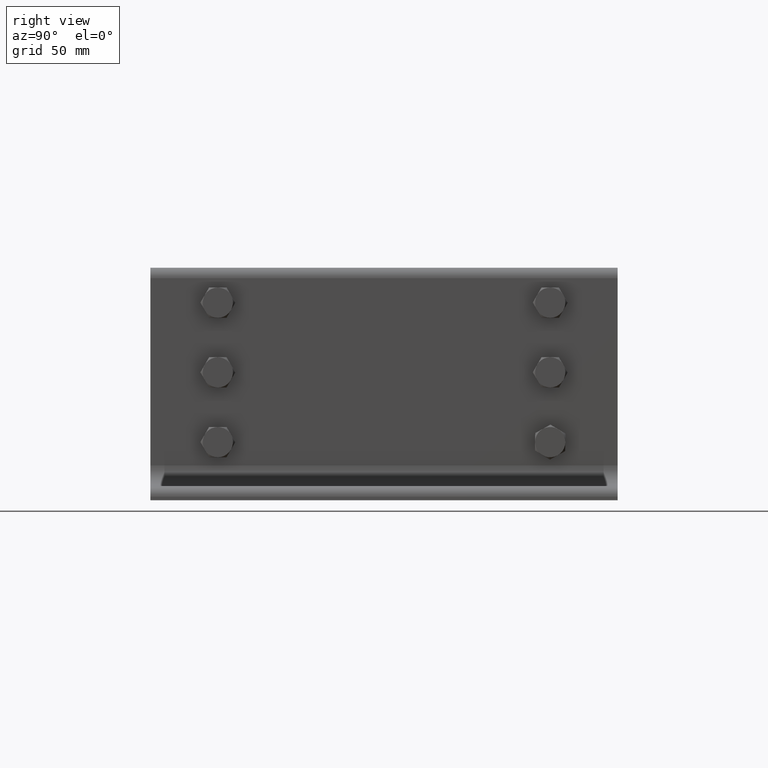
[diagram: clean part render]
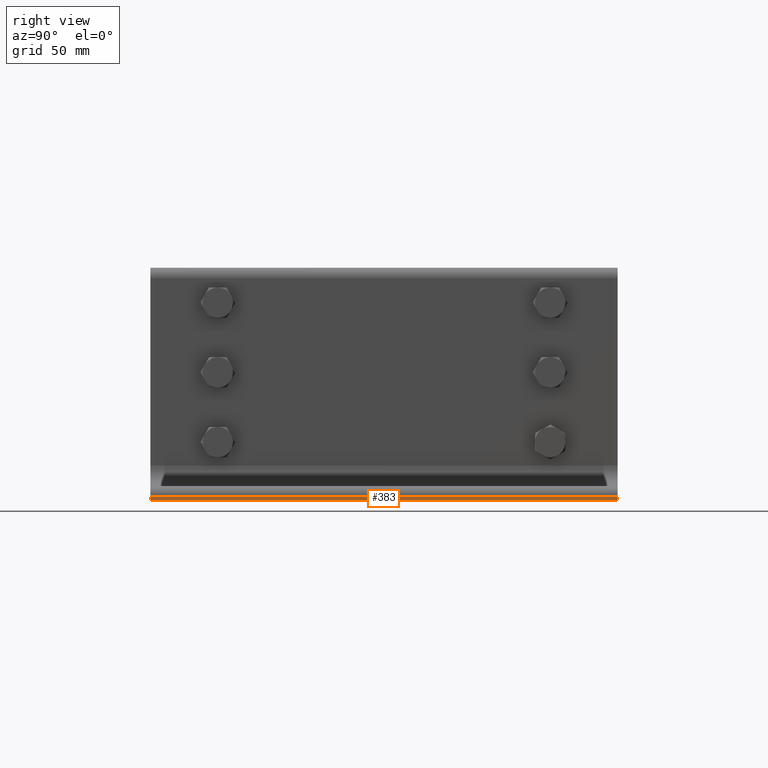
[diagram: same view with one face highlighted and labeled with its STEP entity id]
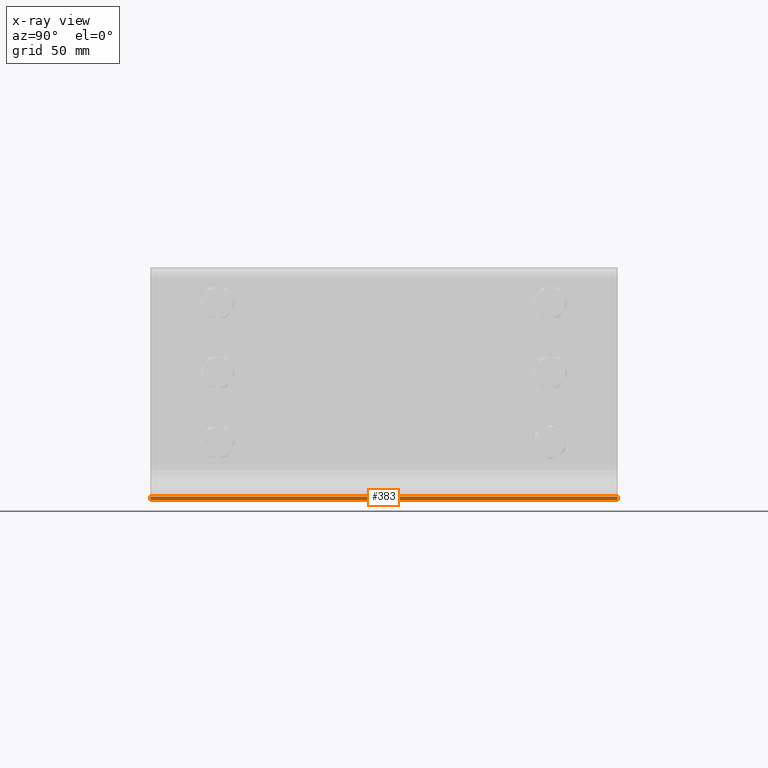
[diagram: x-ray of the same camera — body ghosted, the highlighted face saturated]
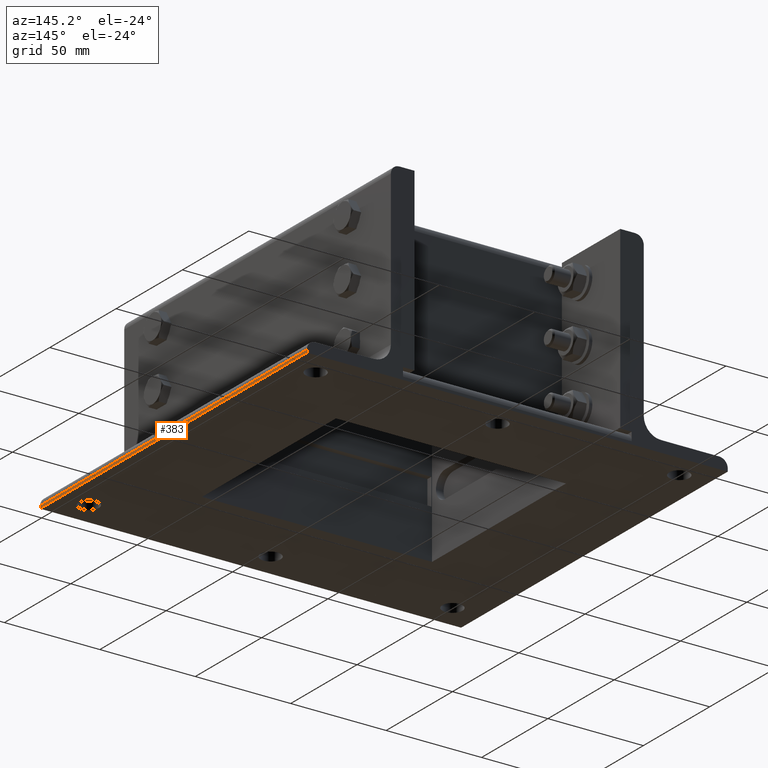
[diagram: same view with one face highlighted and labeled with its STEP entity id]
A machine part, right view. The second image highlights one B-rep face of the part: STEP entity #383.
The next image is the same camera in x-ray: the body ghosted, the highlighted face saturated — about 0% of this face is hidden behind the body in this view.
A second angle (auxiliary view) of the same face is appended — the face is thin or edge-on in the first view.
In plain terms, the highlighted planar face has unit normal (1, -0, 0).
Its self-contained STEP definition (entity closure, byte-faithful):
#325=CARTESIAN_POINT('',(49.999999999999993,201.0,1.499999999999991));
#326=VERTEX_POINT('',#325);
#335=CARTESIAN_POINT('',(49.999999999999993,0.0,1.499999999999991));
#336=VERTEX_POINT('',#335);
#344=CARTESIAN_POINT('',(49.999999999999993,0.0,1.499999999999991));
#345=DIRECTION('',(0.0,1.0,0.0));
#346=VECTOR('',#345,201.0);
#347=LINE('',#344,#346);
#348=EDGE_CURVE('',#336,#326,#347,.T.);
#353=CARTESIAN_POINT('',(49.999999999999993,0.0,5.999999999999989));
#354=DIRECTION('',(1.0,0.0,0.0));
#355=DIRECTION('',(0.0,0.0,-1.0));
#356=AXIS2_PLACEMENT_3D('',#353,#354,#355);
#357=PLANE('',#356);
#358=ORIENTED_EDGE('',*,*,#348,.F.);
#359=CARTESIAN_POINT('',(49.999999999999993,0.0,-9.228729E-015));
#360=VERTEX_POINT('',#359);
#361=CARTESIAN_POINT('',(49.999999999999993,0.0,-9.228729E-015));
#362=DIRECTION('',(0.0,0.0,1.0));
#363=VECTOR('',#362,1.5);
#364=LINE('',#361,#363);
#365=EDGE_CURVE('',#360,#336,#364,.T.);
#366=ORIENTED_EDGE('',*,*,#365,.F.);
#367=CARTESIAN_POINT('',(49.999999999999993,201.0,-1.776357E-014));
#368=VERTEX_POINT('',#367);
#369=CARTESIAN_POINT('',(49.999999999999993,0.0,-9.228729E-015));
#370=DIRECTION('',(0.0,1.0,0.0));
#371=VECTOR('',#370,201.0);
#372=LINE('',#369,#371);
#373=EDGE_CURVE('',#360,#368,#372,.T.);
#374=ORIENTED_EDGE('',*,*,#373,.T.);
#375=CARTESIAN_POINT('',(49.999999999999993,201.0,1.499999999999991));
#376=DIRECTION('',(0.0,0.0,-1.0));
#377=VECTOR('',#376,1.5);
#378=LINE('',#375,#377);
#379=EDGE_CURVE('',#326,#368,#378,.T.);
#380=ORIENTED_EDGE('',*,*,#379,.F.);
#381=EDGE_LOOP('',(#358,#366,#374,#380));
#382=FACE_OUTER_BOUND('',#381,.T.);
#383=ADVANCED_FACE('',(#382),#357,.T.);